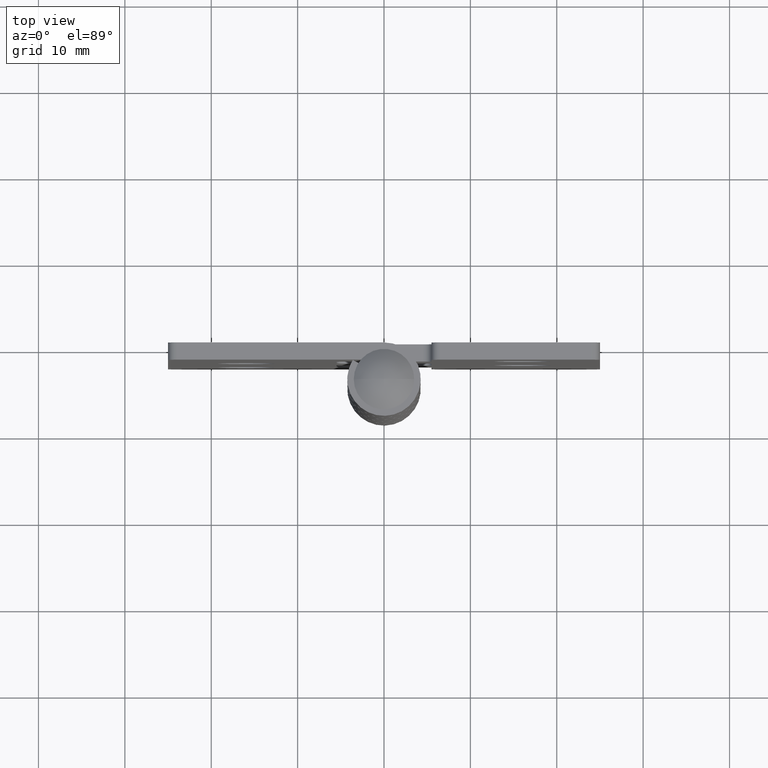
[diagram: clean part render]
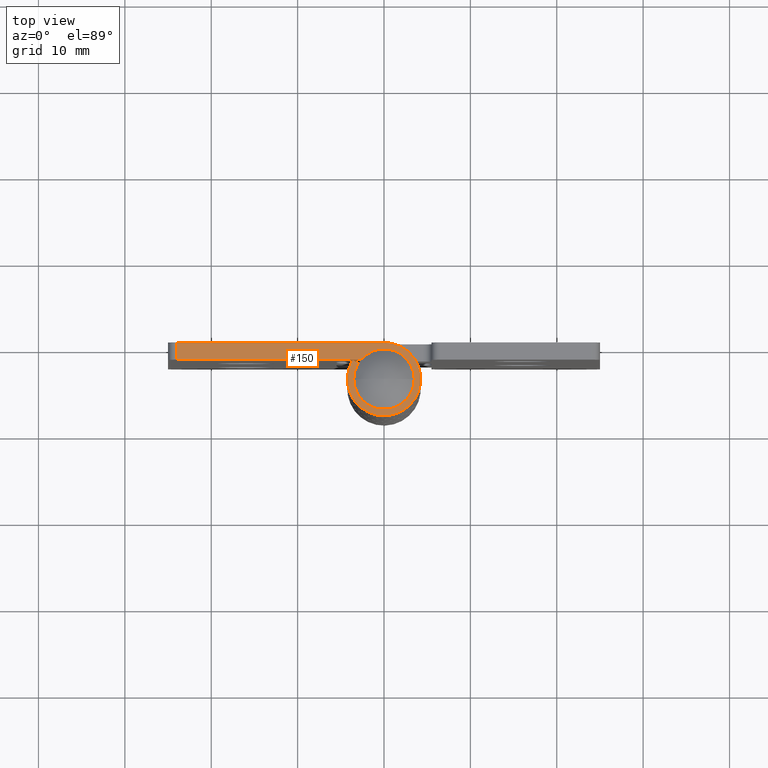
[diagram: same view with one face highlighted and labeled with its STEP entity id]
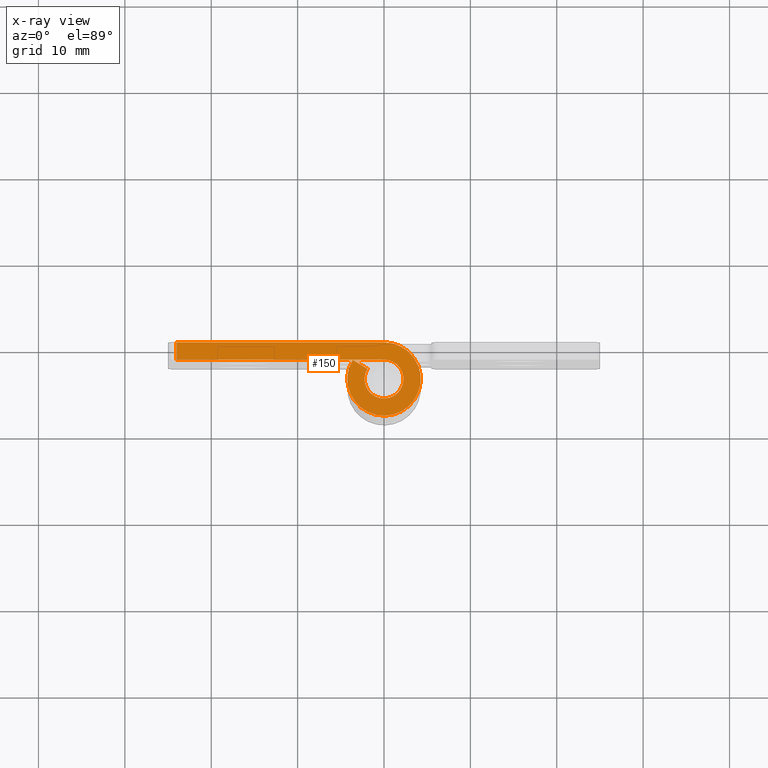
[diagram: x-ray of the same camera — body ghosted, the highlighted face saturated]
A machine part, top view. The second image highlights one B-rep face of the part: STEP entity #150.
The next image is the same camera in x-ray: the body ghosted, the highlighted face saturated — about 0% of this face is hidden behind the body in this view.
In plain terms, the highlighted planar face has unit normal (0, 0, 1).
Its self-contained STEP definition (entity closure, byte-faithful):
#150=ADVANCED_FACE('',(#228),#227,.T.);
#227=PLANE('',#915);
#228=FACE_OUTER_BOUND('',#916,.T.);
#912=CARTESIAN_POINT('',(-2.69114562448E+01,-1.10618411687E+01,6.50000000000E+01));
#913=DIRECTION('',(0.00000000000E+00,-0.00000000000E+00,1.00000000000E+00));
#914=DIRECTION('',(1.00000000000E+00,0.00000000000E+00,0.00000000000E+00));
#915=AXIS2_PLACEMENT_3D('',#912,#913,#914);
#916=EDGE_LOOP('',(#1261,#1262,#1263,#1264,#1265,#1266));
#1261=ORIENTED_EDGE('',*,*,#1633,.F.);
#1262=ORIENTED_EDGE('',*,*,#1634,.T.);
#1263=ORIENTED_EDGE('',*,*,#1635,.F.);
#1264=ORIENTED_EDGE('',*,*,#1636,.T.);
#1265=ORIENTED_EDGE('',*,*,#1637,.F.);
#1266=ORIENTED_EDGE('',*,*,#1638,.F.);
#1633=EDGE_CURVE('',#1843,#1844,#1845,.T.);
#1634=EDGE_CURVE('',#1843,#1851,#1852,.T.);
#1635=EDGE_CURVE('',#1858,#1851,#1859,.T.);
#1636=EDGE_CURVE('',#1858,#1865,#1866,.T.);
#1637=EDGE_CURVE('',#1872,#1865,#1873,.T.);
#1638=EDGE_CURVE('',#1844,#1872,#1879,.T.);
#1843=VERTEX_POINT('',#3075);
#1844=VERTEX_POINT('',#3076);
#1845=LINE('',#3077,#3078);
#1851=VERTEX_POINT('',#3080);
#1852=LINE('',#3081,#3082);
#1858=VERTEX_POINT('',#3084);
#1859=LINE('',#3085,#3086);
#1865=VERTEX_POINT('',#3088);
#1866=CIRCLE('',#3092,2.25000000000E+00);
#1872=VERTEX_POINT('',#3093);
#1873=LINE('',#3094,#3095);
#1879=CIRCLE('',#3100,4.25000000000E+00);
#3075=CARTESIAN_POINT('',(-2.40000002225E+01,-9.94759830064E-14,6.50000000000E+01));
#3076=CARTESIAN_POINT('',(-2.22529479288E-07,-9.94759830064E-14,6.50000000000E+01));
#3077=CARTESIAN_POINT('',(-2.40000002225E+01,-9.94759830064E-14,6.50000000000E+01));
#3078=VECTOR('',#3079,2.40000000000E+01);
#3079=DIRECTION('',(1.00000000000E+00,0.00000000000E+00,0.00000000000E+00));
#3080=CARTESIAN_POINT('',(-2.40000002225E+01,-2.00000000000E+00,6.50000000000E+01));
#3081=CARTESIAN_POINT('',(-2.40000002225E+01,-9.94759830064E-14,6.50000000000E+01));
#3082=VECTOR('',#3083,2.00000000000E+00);
#3083=DIRECTION('',(0.00000000000E+00,-1.00000000000E+00,0.00000000000E+00));
#3084=CARTESIAN_POINT('',(-2.22529479150E-07,-2.00000000000E+00,6.50000000000E+01));
#3085=CARTESIAN_POINT('',(-2.22529479150E-07,-2.00000000000E+00,6.50000000000E+01));
#3086=VECTOR('',#3087,2.40000000000E+01);
#3087=DIRECTION('',(-1.00000000000E+00,0.00000000000E+00,0.00000000000E+00));
#3088=CARTESIAN_POINT('',(-1.91538828208E+00,-3.06941176471E+00,6.50000000000E+01));
#3089=CARTESIAN_POINT('',(-2.22529479288E-07,-4.25000000000E+00,6.50000000000E+01));
#3090=DIRECTION('',(-0.00000000000E+00,0.00000000000E+00,-1.00000000000E+00));
#3091=DIRECTION('',(-8.51283582024E-01,5.24705882353E-01,0.00000000000E+00));
#3092=AXIS2_PLACEMENT_3D('',#3089,#3090,#3091);
#3093=CARTESIAN_POINT('',(-3.61795544613E+00,-2.02000000000E+00,6.50000000000E+01));
#3094=CARTESIAN_POINT('',(-3.61795544613E+00,-2.02000000000E+00,6.50000000000E+01));
#3095=VECTOR('',#3096,2.00000000000E+00);
#3096=DIRECTION('',(8.51283582024E-01,-5.24705882353E-01,0.00000000000E+00));
#3097=CARTESIAN_POINT('',(-2.22529479288E-07,-4.25000000000E+00,6.50000000000E+01));
#3098=DIRECTION('',(-0.00000000000E+00,0.00000000000E+00,-1.00000000000E+00));
#3099=DIRECTION('',(-8.51283582024E-01,5.24705882353E-01,0.00000000000E+00));
#3100=AXIS2_PLACEMENT_3D('',#3097,#3098,#3099);